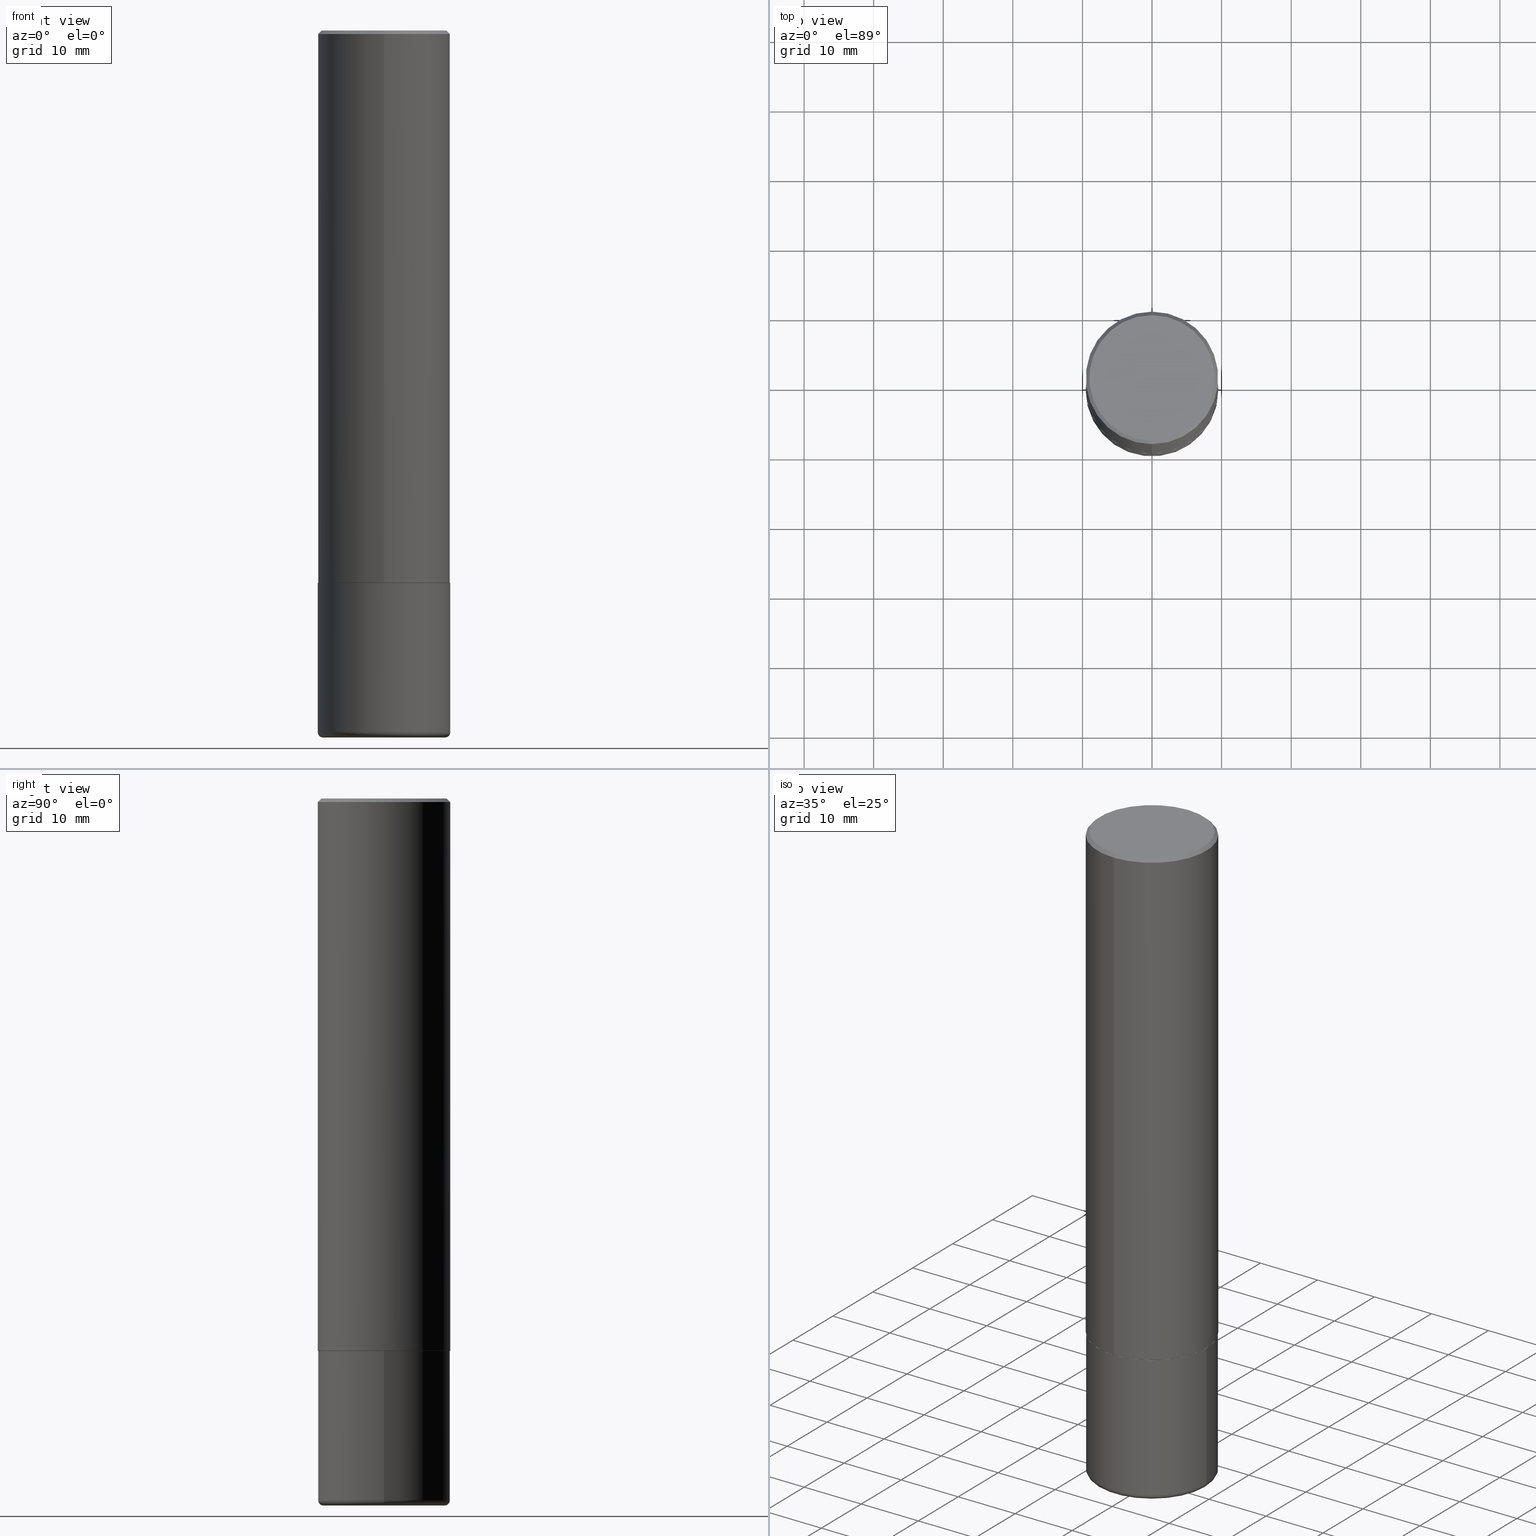
[diagram: canonical four-view strip — front | top / right | iso, engineering-drawing reading convention]
A machine part, canonical four-view strip (front | top / right | iso — engineering-drawing reading convention). The complete STEP part file that produces these views, byte-faithful:
ISO-10303-21;
HEADER;
FILE_DESCRIPTION (( 'STEP AP203' ),
    '1' );
FILE_NAME ('37089.STEP',
    '2024-03-01T19:56:01',
    ( '' ),
    ( '' ),
    'SwSTEP 2.0',
    'SolidWorks 2023',
    '' );
FILE_SCHEMA (( 'CONFIG_CONTROL_DESIGN' ));
ENDSEC;

DATA;
#1 = AXIS2_PLACEMENT_3D ( 'NONE', #22, #353, #398 ) ;
#2 = CARTESIAN_POINT ( 'NONE',  ( 2.660982545421652501E-15, 0.3739999999999891189, -3.125000000000001332 ) ) ;
#3 = CC_DESIGN_DATE_AND_TIME_ASSIGNMENT ( #294, #413, ( #352 ) ) ;
#4 = DIRECTION ( 'NONE',  ( 2.445996322747269804E-29, -3.490725905101792415E-15, -1.000000000000000000 ) ) ;
#5 = VERTEX_POINT ( 'NONE', #239 ) ;
#6 = AXIS2_PLACEMENT_3D ( 'NONE', #274, #178, #377 ) ;
#7 = AXIS2_PLACEMENT_3D ( 'NONE', #183, #213, #215 ) ;
#8 = ORIENTED_EDGE ( 'NONE', *, *, #225, .F. ) ;
#9 = ORIENTED_EDGE ( 'NONE', *, *, #396, .T. ) ;
#10 = EDGE_CURVE ( 'NONE', #43, #173, #357, .T. ) ;
#11 = DIRECTION ( 'NONE',  ( -4.851104656540953231E-15, -0.7071067811865484609, -0.7071067811865465735 ) ) ;
#12 = DIRECTION ( 'NONE',  ( 1.000000000000000000, -6.982962677686267499E-15, 0.000000000000000000 ) ) ;
#13 = PERSON_AND_ORGANIZATION ( #23, #229 ) ;
#14 = EDGE_LOOP ( 'NONE', ( #65, #73, #303, #338 ) ) ;
#15 = ORIENTED_EDGE ( 'NONE', *, *, #164, .T. ) ;
#16 = AXIS2_PLACEMENT_3D ( 'NONE', #34, #71, #212 ) ;
#17 = LINE ( 'NONE', #78, #412 ) ;
#18 = PERSON_AND_ORGANIZATION ( #23, #229 ) ;
#19 = DIRECTION ( 'NONE',  ( -6.982962677686265922E-15, -1.000000000000000000, 3.494488891895535640E-15 ) ) ;
#20 = EDGE_CURVE ( 'NONE', #234, #5, #125, .T. ) ;
#21 = DIRECTION ( 'NONE',  ( -2.445996322747269804E-29, 3.490725905101792415E-15, 1.000000000000000000 ) ) ;
#22 = CARTESIAN_POINT ( 'NONE',  ( 0.000000000000000000, 0.000000000000000000, 0.000000000000000000 ) ) ;
#23 = PERSON ( 'UNSPECIFIED', 'UNSPECIFIED', 'UNSPECIFIED', ('UNSPECIFIED'), ('UNSPECIFIED'), ('UNSPECIFIED') ) ;
#24 = TOROIDAL_SURFACE ( 'NONE', #194, 0.3450000000000000289, 0.02999999999999998848 ) ;
#25 = DIRECTION ( 'NONE',  ( 2.438088387897960049E-29, -3.491481338843145188E-15, -1.000000000000000000 ) ) ;
#26 = DIRECTION ( 'NONE',  ( 1.000000000000000000, 0.000000000000000000, 0.000000000000000000 ) ) ;
#27 = PERSON_AND_ORGANIZATION_ROLE ( 'design_owner' ) ;
#28 = CONICAL_SURFACE ( 'NONE', #403, 0.3750000000000001110, 0.7853981633974461696 ) ;
#29 = EDGE_CURVE ( 'NONE', #237, #364, #216, .T. ) ;
#30 = PERSON_AND_ORGANIZATION ( #23, #229 ) ;
#31 = APPROVAL ( #405, 'UNSPECIFIED' ) ;
#32 = PLANE ( 'NONE',  #202 ) ;
#33 = CC_DESIGN_PERSON_AND_ORGANIZATION_ASSIGNMENT ( #13, #246, ( #92 ) ) ;
#34 = CARTESIAN_POINT ( 'NONE',  ( 9.781875224740546387E-29, -1.396592535537258233E-14, -4.000000000000000000 ) ) ;
#35 = CYLINDRICAL_SURFACE ( 'NONE', #197, 0.3750000000000002220 ) ;
#36 = ORIENTED_EDGE ( 'NONE', *, *, #126, .F. ) ;
#37 = LOCAL_TIME ( 14, 56, 1.000000000000000000, #409 ) ;
#38 = CARTESIAN_POINT ( 'NONE',  ( 9.708511160554992872E-29, -1.386118091520728738E-14, -3.970000000000000195 ) ) ;
#39 = ADVANCED_FACE ( 'NONE', ( #374 ), #28, .T. ) ;
#40 = ORIENTED_EDGE ( 'NONE', *, *, #20, .F. ) ;
#41 = DIRECTION ( 'NONE',  ( -2.445468806185136597E-29, 3.491481338843145583E-15, 1.000000000000000000 ) ) ;
#42 = CYLINDRICAL_SURFACE ( 'NONE', #332, 0.3750000000000000555 ) ;
#43 = VERTEX_POINT ( 'NONE', #54 ) ;
#44 = CARTESIAN_POINT ( 'NONE',  ( -2.618611004132276258E-15, -0.3750000000000113243, -3.123999999999999222 ) ) ;
#45 = CARTESIAN_POINT ( 'NONE',  ( -4.796192645073071495E-45, 6.844733884640892963E-31, 1.960833955664386180E-16 ) ) ;
#46 = EDGE_LOOP ( 'NONE', ( #221, #204, #276, #306 ) ) ;
#47 = CARTESIAN_POINT ( 'NONE',  ( 0.3750000000000000555, -2.618611004132350016E-15, 1.828566290923476203E-29 ) ) ;
#48 = AXIS2_PLACEMENT_3D ( 'NONE', #106, #25, #381 ) ;
#49 = CARTESIAN_POINT ( 'NONE',  ( -0.3750000000000000555, -9.721494790445683584E-15, -3.125000000000000000 ) ) ;
#50 = CARTESIAN_POINT ( 'NONE',  ( -2.618611004132351594E-15, -0.3750000000000002220, 1.309022214413172994E-15 ) ) ;
#51 = DIRECTION ( 'NONE',  ( 1.000000000000000000, -6.982962677686266711E-15, 0.000000000000000000 ) ) ;
#52 = FACE_OUTER_BOUND ( 'NONE', #139, .T. ) ;
#53 = EDGE_CURVE ( 'NONE', #5, #234, #185, .T. ) ;
#54 = CARTESIAN_POINT ( 'NONE',  ( -2.504081769186608216E-15, -0.3549999999999999267, 1.435291091877574841E-15 ) ) ;
#55 =( NAMED_UNIT ( * ) PLANE_ANGLE_UNIT ( ) SI_UNIT ( $, .RADIAN. ) );
#56 = DIRECTION ( 'NONE',  ( 7.105427357601001859E-15, 1.000000000000000000, -3.491481338843145583E-15 ) ) ;
#57 = APPLICATION_PROTOCOL_DEFINITION ( 'international standard', 'config_control_design', 1994, #279 ) ;
#58 = ORIENTED_EDGE ( 'NONE', *, *, #232, .F. ) ;
#59 = CC_DESIGN_PERSON_AND_ORGANIZATION_ASSIGNMENT ( #30, #107, ( #92 ) ) ;
#60 = CALENDAR_DATE ( 2024, 1, 3 ) ;
#61 = CC_DESIGN_APPROVAL ( #316, ( #92 ) ) ;
#62 = AXIS2_PLACEMENT_3D ( 'NONE', #407, #255, #260 ) ;
#63 = CARTESIAN_POINT ( 'NONE',  ( -0.3750000000000000555, 2.664535259100376091E-15, -1.844600658845589598E-29 ) ) ;
#64 = CARTESIAN_POINT ( 'NONE',  ( -2.572686749164324336E-15, -0.3750000000000001665, -0.01999999999999877570 ) ) ;
#65 = ORIENTED_EDGE ( 'NONE', *, *, #232, .T. ) ;
#66 = ORIENTED_EDGE ( 'NONE', *, *, #389, .F. ) ;
#67 = EDGE_CURVE ( 'NONE', #72, #210, #157, .T. ) ;
#68 = DIRECTION ( 'NONE',  ( -6.982962677686265922E-15, -1.000000000000000000, 3.490725905101791232E-15 ) ) ;
#69 = EDGE_LOOP ( 'NONE', ( #307, #337, #74, #284 ) ) ;
#70 = AXIS2_PLACEMENT_3D ( 'NONE', #45, #305, #68 ) ;
#71 = DIRECTION ( 'NONE',  ( 2.438088387897960049E-29, -3.491481338843145188E-15, -1.000000000000000000 ) ) ;
#72 = VERTEX_POINT ( 'NONE', #314 ) ;
#73 = ORIENTED_EDGE ( 'NONE', *, *, #331, .T. ) ;
#74 = ORIENTED_EDGE ( 'NONE', *, *, #225, .T. ) ;
#75 = DIRECTION ( 'NONE',  ( -6.982962677686265922E-15, -1.000000000000000000, 2.913971193241877611E-15 ) ) ;
#76 = CARTESIAN_POINT ( 'NONE',  ( -2.611628041454587088E-15, -0.3740000000000109348, -3.124999999999999112 ) ) ;
#77 = ORIENTED_EDGE ( 'NONE', *, *, #248, .F. ) ;
#78 = CARTESIAN_POINT ( 'NONE',  ( 2.664535259100376880E-15, 0.3750000000000002220, -1.309022214413172994E-15 ) ) ;
#79 = CIRCLE ( 'NONE', #327, 0.3750000000000000555 ) ;
#80 = DIRECTION ( 'NONE',  ( -6.982962677686265922E-15, -1.000000000000000000, 3.494488891895535640E-15 ) ) ;
#81 = CARTESIAN_POINT ( 'NONE',  ( 4.891992645494561398E-31, -6.981451810203614264E-17, -0.02000000000000008715 ) ) ;
#82 = CYLINDRICAL_SURFACE ( 'NONE', #1, 0.3750000000000000555 ) ;
#83 = DIRECTION ( 'NONE',  ( -2.445468806185136597E-29, 3.491481338843145583E-15, 1.000000000000000000 ) ) ;
#84 = COORDINATED_UNIVERSAL_TIME_OFFSET ( 5, 0, .BEHIND. ) ;
#85 = EDGE_CURVE ( 'NONE', #240, #340, #391, .T. ) ;
#86 = DIRECTION ( 'NONE',  ( 0.000000000000000000, 0.000000000000000000, 1.000000000000000000 ) ) ;
#87 = DATE_AND_TIME ( #380, #37 ) ;
#88 = DIRECTION ( 'NONE',  ( 2.445996322747269804E-29, -3.490725905101792415E-15, -1.000000000000000000 ) ) ;
#89 = DIRECTION ( 'NONE',  ( -2.445996322747270084E-29, 3.490725905101792021E-15, 1.000000000000000000 ) ) ;
#90 = FACE_OUTER_BOUND ( 'NONE', #392, .T. ) ;
#91 = AXIS2_PLACEMENT_3D ( 'NONE', #209, #347, #351 ) ;
#92 = PRODUCT_DEFINITION_FORMATION_WITH_SPECIFIED_SOURCE ( 'ANY', '', #406, .NOT_KNOWN. ) ;
#93 = DIRECTION ( 'NONE',  ( -6.982962677686266711E-15, -1.000000000000000000, 2.921762560068730595E-15 ) ) ;
#94 = EDGE_CURVE ( 'NONE', #237, #163, #382, .T. ) ;
#95 = ORIENTED_EDGE ( 'NONE', *, *, #270, .T. ) ;
#96 = CARTESIAN_POINT ( 'NONE',  ( 7.641292512262471991E-29, -1.090502772753799986E-14, -3.124000000000000554 ) ) ;
#97 = CC_DESIGN_APPROVAL ( #188, ( #352 ) ) ;
#98 = DIMENSIONAL_EXPONENTS ( 1.000000000000000000, 0.000000000000000000, 0.000000000000000000, 0.000000000000000000, 0.000000000000000000, 0.000000000000000000, 0.000000000000000000 ) ;
#99 = ORIENTED_EDGE ( 'NONE', *, *, #148, .F. ) ;
#100 = EDGE_CURVE ( 'NONE', #163, #237, #114, .T. ) ;
#101 = DIRECTION ( 'NONE',  ( -2.445996322747269804E-29, 3.490725905101792415E-15, 1.000000000000000000 ) ) ;
#102 = EDGE_LOOP ( 'NONE', ( #400, #366, #108, #395 ) ) ;
#103 = ORIENTED_EDGE ( 'NONE', *, *, #148, .T. ) ;
#104 = CC_DESIGN_PERSON_AND_ORGANIZATION_ASSIGNMENT ( #124, #253, ( #352 ) ) ;
#105 = APPLICATION_CONTEXT ( 'configuration controlled 3d designs of mechanical parts and assemblies' ) ;
#106 = CARTESIAN_POINT ( 'NONE',  ( 7.642090019328551865E-29, -1.091087918388483118E-14, -3.125000000000000000 ) ) ;
#107 = PERSON_AND_ORGANIZATION_ROLE ( 'creator' ) ;
#108 = ORIENTED_EDGE ( 'NONE', *, *, #29, .T. ) ;
#109 = EDGE_LOOP ( 'NONE', ( #66, #168, #308, #299 ) ) ;
#110 = PLANE ( 'NONE',  #166 ) ;
#111 = CARTESIAN_POINT ( 'NONE',  ( 7.643738508585217927E-29, -1.090851845344310125E-14, -3.125000000000000000 ) ) ;
#112 = DIRECTION ( 'NONE',  ( -2.445996322747269804E-29, 3.490725905101792415E-15, 1.000000000000000000 ) ) ;
#113 = CALENDAR_DATE ( 2024, 1, 3 ) ;
#114 = CIRCLE ( 'NONE', #62, 0.3739999999999999991 ) ;
#115 = AXIS2_PLACEMENT_3D ( 'NONE', #238, #371, #12 ) ;
#116 = CARTESIAN_POINT ( 'NONE',  ( -0.3450000000000000289, -1.140980847683494193E-14, -3.970000000000000195 ) ) ;
#117 = ADVANCED_FACE ( 'NONE', ( #343 ), #297, .T. ) ;
#118 = CARTESIAN_POINT ( 'NONE',  ( 0.000000000000000000, 0.000000000000000000, 0.000000000000000000 ) ) ;
#119 = APPROVAL_ROLE ( '' ) ;
#120 = LINE ( 'NONE', #181, #313 ) ;
#121 = SHAPE_DEFINITION_REPRESENTATION ( #414, #383 ) ;
#122 = DIRECTION ( 'NONE',  ( 6.982962677686265922E-15, 1.000000000000000000, -3.494488891895535640E-15 ) ) ;
#123 = VECTOR ( 'NONE', #280, 39.37007874015748143 ) ;
#124 = PERSON_AND_ORGANIZATION ( #23, #229 ) ;
#125 = CIRCLE ( 'NONE', #235, 0.3750000000000000555 ) ;
#126 = EDGE_CURVE ( 'NONE', #43, #240, #394, .T. ) ;
#127 =( CONVERSION_BASED_UNIT ( 'INCH', #195 ) LENGTH_UNIT ( ) NAMED_UNIT ( #98 ) );
#128 = MANIFOLD_SOLID_BREP ( 'Body-Move/Copy2[2]', #161 ) ;
#129 = FACE_OUTER_BOUND ( 'NONE', #277, .T. ) ;
#130 = ADVANCED_FACE ( 'NONE', ( #201 ), #42, .T. ) ;
#131 = LINE ( 'NONE', #218, #304 ) ;
#132 = CC_DESIGN_SECURITY_CLASSIFICATION ( #198, ( #92 ) ) ;
#133 = ADVANCED_FACE ( 'NONE', ( #325 ), #326, .T. ) ;
#134 = DIRECTION ( 'NONE',  ( -2.445996322747269804E-29, 3.490725905101792415E-15, 1.000000000000000000 ) ) ;
#135 = ORIENTED_EDGE ( 'NONE', *, *, #378, .F. ) ;
#136 = ADVANCED_FACE ( 'NONE', ( #384 ), #32, .F. ) ;
#137 = AXIS2_PLACEMENT_3D ( 'NONE', #258, #330, #418 ) ;
#138 = VECTOR ( 'NONE', #208, 39.37007874015748143 ) ;
#139 = EDGE_LOOP ( 'NONE', ( #140, #365, #262, #8 ) ) ;
#140 = ORIENTED_EDGE ( 'NONE', *, *, #20, .T. ) ;
#141 = LINE ( 'NONE', #50, #138 ) ;
#142 = AXIS2_PLACEMENT_3D ( 'NONE', #96, #101, #230 ) ;
#143 = PERSON_AND_ORGANIZATION_ROLE ( 'classification_officer' ) ;
#144 = AXIS2_PLACEMENT_3D ( 'NONE', #146, #112, #80 ) ;
#145 = DIRECTION ( 'NONE',  ( -2.445996322747270084E-29, 3.490725905101792021E-15, 1.000000000000000000 ) ) ;
#146 = CARTESIAN_POINT ( 'NONE',  ( 4.891992645494561398E-31, -6.981451810203614264E-17, -0.02000000000000008715 ) ) ;
#147 = SECURITY_CLASSIFICATION_LEVEL ( 'unclassified' ) ;
#148 = EDGE_CURVE ( 'NONE', #173, #43, #397, .T. ) ;
#149 = FACE_OUTER_BOUND ( 'NONE', #254, .T. ) ;
#150 = VECTOR ( 'NONE', #11, 39.37007874015748143 ) ;
#151 = DIRECTION ( 'NONE',  ( 1.000000000000000000, -6.982962677686266711E-15, 0.000000000000000000 ) ) ;
#152 = APPROVAL_PERSON_ORGANIZATION ( #18, #31, #119 ) ;
#153 = DIRECTION ( 'NONE',  ( 1.000000000000000000, -6.982962677686266711E-15, 0.000000000000000000 ) ) ;
#154 =( LENGTH_UNIT ( ) NAMED_UNIT ( * ) SI_UNIT ( $, .METRE. ) );
#155 = PERSON_AND_ORGANIZATION ( #23, #229 ) ;
#156 = CC_DESIGN_PERSON_AND_ORGANIZATION_ASSIGNMENT ( #287, #143, ( #198 ) ) ;
#157 = CIRCLE ( 'NONE', #91, 0.3450000000000000289 ) ;
#158 = DIRECTION ( 'NONE',  ( -2.445996322747269804E-29, 3.490725905101792415E-15, 1.000000000000000000 ) ) ;
#159 = PRODUCT_RELATED_PRODUCT_CATEGORY ( 'detail', '', ( #406 ) ) ;
#160 = ADVANCED_FACE ( 'NONE', ( #129 ), #227, .T. ) ;
#161 = CLOSED_SHELL ( 'NONE', ( #160, #171, #117, #39, #133, #257, #136, #295 ) ) ;
#162 = AXIS2_PLACEMENT_3D ( 'NONE', #261, #158, #296 ) ;
#163 = VERTEX_POINT ( 'NONE', #2 ) ;
#164 = EDGE_CURVE ( 'NONE', #200, #370, #79, .T. ) ;
#165 = EDGE_LOOP ( 'NONE', ( #335, #344, #95, #135 ) ) ;
#166 = AXIS2_PLACEMENT_3D ( 'NONE', #408, #172, #319 ) ;
#167 = DIRECTION ( 'NONE',  ( -2.445468806185136597E-29, 3.491481338843145583E-15, 1.000000000000000000 ) ) ;
#168 = ORIENTED_EDGE ( 'NONE', *, *, #363, .T. ) ;
#169 = DIRECTION ( 'NONE',  ( -6.982962677686266711E-15, -1.000000000000000000, 3.490725905101792415E-15 ) ) ;
#170 = ORIENTED_EDGE ( 'NONE', *, *, #67, .T. ) ;
#171 = ADVANCED_FACE ( 'NONE', ( #367 ), #35, .T. ) ;
#172 = DIRECTION ( 'NONE',  ( 2.445996322747270084E-29, -3.490725905101792021E-15, -1.000000000000000000 ) ) ;
#173 = VERTEX_POINT ( 'NONE', #263 ) ;
#174 = CARTESIAN_POINT ( 'NONE',  ( -2.572686749164324336E-15, -0.3750000000000001665, -0.01999999999999877570 ) ) ;
#175 =( GEOMETRIC_REPRESENTATION_CONTEXT ( 3 ) GLOBAL_UNCERTAINTY_ASSIGNED_CONTEXT ( ( #251 ) ) GLOBAL_UNIT_ASSIGNED_CONTEXT ( ( #127, #55, #293 ) ) REPRESENTATION_CONTEXT ( 'NONE', 'WORKASPACE' ) );
#176 = CIRCLE ( 'NONE', #275, 0.3750000000000000555 ) ;
#177 = DIRECTION ( 'NONE',  ( -4.937700262165896205E-15, -0.7071067811867381980, 0.7071067811863568364 ) ) ;
#178 = DIRECTION ( 'NONE',  ( -6.982962677686266711E-15, -1.000000000000000000, 3.491481338843145583E-15 ) ) ;
#179 = EDGE_CURVE ( 'NONE', #399, #364, #375, .T. ) ;
#180 = CC_DESIGN_DATE_AND_TIME_ASSIGNMENT ( #87, #184, ( #198 ) ) ;
#181 = CARTESIAN_POINT ( 'NONE',  ( 2.657429831742851208E-15, 0.3739999999999891189, -3.125000000000001332 ) ) ;
#182 = DIRECTION ( 'NONE',  ( -2.445996322747269804E-29, 3.490725905101792415E-15, 1.000000000000000000 ) ) ;
#183 = CARTESIAN_POINT ( 'NONE',  ( 7.643738508585217927E-29, -1.090851845344310125E-14, -3.125000000000000000 ) ) ;
#184 = DATE_TIME_ROLE ( 'classification_date' ) ;
#185 = CIRCLE ( 'NONE', #219, 0.3750000000000000555 ) ;
#186 = CIRCLE ( 'NONE', #361, 0.02999999999999995379 ) ;
#187 = APPROVAL_STATUS ( 'not_yet_approved' ) ;
#188 = APPROVAL ( #187, 'UNSPECIFIED' ) ;
#189 = CARTESIAN_POINT ( 'NONE',  ( 9.708511160554992872E-29, -1.386118091520728738E-14, -3.970000000000000195 ) ) ;
#190 = APPROVAL_ROLE ( '' ) ;
#191 = DIRECTION ( 'NONE',  ( -1.000000000000000000, 7.105427357601001859E-15, 0.000000000000000000 ) ) ;
#192 = CIRCLE ( 'NONE', #6, 0.02999999999999995379 ) ;
#193 = APPROVAL_DATE_TIME ( #329, #316 ) ;
#194 = AXIS2_PLACEMENT_3D ( 'NONE', #404, #245, #379 ) ;
#195 = LENGTH_MEASURE_WITH_UNIT ( LENGTH_MEASURE( 0.02539999999999999897 ), #154 );
#196 = EDGE_CURVE ( 'NONE', #5, #370, #362, .T. ) ;
#197 = AXIS2_PLACEMENT_3D ( 'NONE', #298, #134, #169 ) ;
#198 = SECURITY_CLASSIFICATION ( '', '', #147 ) ;
#199 = EDGE_LOOP ( 'NONE', ( #36, #99, #9, #206 ) ) ;
#200 = VERTEX_POINT ( 'NONE', #268 ) ;
#201 = FACE_OUTER_BOUND ( 'NONE', #69, .T. ) ;
#202 = AXIS2_PLACEMENT_3D ( 'NONE', #416, #89, #226 ) ;
#203 = LOCAL_TIME ( 14, 56, 1.000000000000000000, #410 ) ;
#204 = ORIENTED_EDGE ( 'NONE', *, *, #126, .T. ) ;
#205 = DIRECTION ( 'NONE',  ( 5.024295867789434219E-15, 0.7071067811867430830, 0.7071067811863519514 ) ) ;
#206 = ORIENTED_EDGE ( 'NONE', *, *, #378, .T. ) ;
#207 = ORIENTED_EDGE ( 'NONE', *, *, #302, .T. ) ;
#208 = DIRECTION ( 'NONE',  ( -2.445996322747270084E-29, 3.490725905101792021E-15, 1.000000000000000000 ) ) ;
#209 = CARTESIAN_POINT ( 'NONE',  ( 9.781875224740546387E-29, -1.396592535537258233E-14, -4.000000000000000000 ) ) ;
#210 = VERTEX_POINT ( 'NONE', #247 ) ;
#211 = CARTESIAN_POINT ( 'NONE',  ( -2.611628041454587088E-15, -0.3740000000000109348, -3.124999999999999112 ) ) ;
#212 = DIRECTION ( 'NONE',  ( -1.000000000000000000, 6.982962677686265922E-15, -4.876176775795935793E-29 ) ) ;
#213 = DIRECTION ( 'NONE',  ( -2.445996322747269804E-29, 3.490725905101792415E-15, 1.000000000000000000 ) ) ;
#214 = DIRECTION ( 'NONE',  ( -2.445996322747269804E-29, 3.490725905101792415E-15, 1.000000000000000000 ) ) ;
#215 = DIRECTION ( 'NONE',  ( -6.982962677686266711E-15, -1.000000000000000000, 2.921762560068730595E-15 ) ) ;
#216 = LINE ( 'NONE', #76, #265 ) ;
#217 = APPLICATION_PROTOCOL_DEFINITION ( 'international standard', 'config_control_design', 1994, #105 ) ;
#218 = CARTESIAN_POINT ( 'NONE',  ( 2.618611004132351200E-15, 0.3750000000000000555, -0.02000000000000139513 ) ) ;
#219 = AXIS2_PLACEMENT_3D ( 'NONE', #189, #250, #51 ) ;
#220 = APPROVAL_PERSON_ORGANIZATION ( #356, #188, #190 ) ;
#221 = ORIENTED_EDGE ( 'NONE', *, *, #10, .F. ) ;
#222 = DIRECTION ( 'NONE',  ( -2.445996322747269804E-29, 3.490725905101792415E-15, 1.000000000000000000 ) ) ;
#223 = CARTESIAN_POINT ( 'NONE',  ( 0.000000000000000000, 0.000000000000000000, 0.000000000000000000 ) ) ;
#224 = APPROVAL_ROLE ( '' ) ;
#225 = EDGE_CURVE ( 'NONE', #234, #200, #346, .T. ) ;
#226 = DIRECTION ( 'NONE',  ( -6.982962677686265922E-15, -1.000000000000000000, 3.490725905101792021E-15 ) ) ;
#227 = CONICAL_SURFACE ( 'NONE', #273, 0.3739999999999999991, 0.7853981633977213939 ) ;
#228 = LOCAL_TIME ( 14, 56, 1.000000000000000000, #359 ) ;
#229 = ORGANIZATION ( 'UNSPECIFIED', 'UNSPECIFIED', '' ) ;
#230 = DIRECTION ( 'NONE',  ( -6.982962677686265922E-15, -1.000000000000000000, 2.913971193241877611E-15 ) ) ;
#231 = DIRECTION ( 'NONE',  ( 6.982962677686265922E-15, 1.000000000000000000, -3.494488891895535640E-15 ) ) ;
#232 = EDGE_CURVE ( 'NONE', #364, #399, #411, .T. ) ;
#233 = ORIENTED_EDGE ( 'NONE', *, *, #67, .F. ) ;
#234 = VERTEX_POINT ( 'NONE', #278 ) ;
#235 = AXIS2_PLACEMENT_3D ( 'NONE', #38, #167, #151 ) ;
#236 = DIRECTION ( 'NONE',  ( 1.000000000000000000, -6.982962677686266711E-15, 0.000000000000000000 ) ) ;
#237 = VERTEX_POINT ( 'NONE', #211 ) ;
#238 = CARTESIAN_POINT ( 'NONE',  ( 9.781875224740546387E-29, -1.396592535537258233E-14, -4.000000000000000000 ) ) ;
#239 = CARTESIAN_POINT ( 'NONE',  ( -0.3749999999999999445, -1.119664565610691011E-14, -3.970000000000000195 ) ) ;
#240 = VERTEX_POINT ( 'NONE', #174 ) ;
#241 = DIRECTION ( 'NONE',  ( -2.445468806185136597E-29, 3.491481338843145583E-15, 1.000000000000000000 ) ) ;
#242 = CARTESIAN_POINT ( 'NONE',  ( 9.708511160554992872E-29, -1.386118091520728738E-14, -3.970000000000000195 ) ) ;
#243 = AXIS2_PLACEMENT_3D ( 'NONE', #317, #21, #75 ) ;
#244 = AXIS2_PLACEMENT_3D ( 'NONE', #223, #86, #26 ) ;
#245 = DIRECTION ( 'NONE',  ( -2.445468806185136597E-29, 3.491481338843145583E-15, 1.000000000000000000 ) ) ;
#246 = PERSON_AND_ORGANIZATION_ROLE ( 'design_supplier' ) ;
#247 = CARTESIAN_POINT ( 'NONE',  ( -0.3450000000000000289, -1.135559928655357428E-14, -4.000000000000000000 ) ) ;
#248 = EDGE_CURVE ( 'NONE', #72, #234, #192, .T. ) ;
#249 = PLANE ( 'NONE',  #16 ) ;
#250 = DIRECTION ( 'NONE',  ( -2.445468806185136597E-29, 3.491481338843145583E-15, 1.000000000000000000 ) ) ;
#251 = UNCERTAINTY_MEASURE_WITH_UNIT (LENGTH_MEASURE( 1.000000000000000082E-05 ), #127, 'distance_accuracy_value', 'NONE');
#252 = CC_DESIGN_APPROVAL ( #31, ( #198 ) ) ;
#253 = PERSON_AND_ORGANIZATION_ROLE ( 'creator' ) ;
#254 = EDGE_LOOP ( 'NONE', ( #170, #272, #40, #77 ) ) ;
#255 = DIRECTION ( 'NONE',  ( -2.445996322747269804E-29, 3.490725905101792415E-15, 1.000000000000000000 ) ) ;
#256 = PERSON_AND_ORGANIZATION ( #23, #229 ) ;
#257 = ADVANCED_FACE ( 'NONE', ( #355 ), #328, .T. ) ;
#258 = CARTESIAN_POINT ( 'NONE',  ( -4.796192645073071495E-45, 6.844733884640892963E-31, 1.960833955664386180E-16 ) ) ;
#259 = MECHANICAL_CONTEXT ( 'NONE', #105, 'mechanical' ) ;
#260 = DIRECTION ( 'NONE',  ( -6.982962677686266711E-15, -1.000000000000000000, 2.921762560068730595E-15 ) ) ;
#261 = CARTESIAN_POINT ( 'NONE',  ( 0.000000000000000000, 0.000000000000000000, 0.000000000000000000 ) ) ;
#262 = ORIENTED_EDGE ( 'NONE', *, *, #164, .F. ) ;
#263 = CARTESIAN_POINT ( 'NONE',  ( 2.548781377355487113E-15, 0.3549999999999999267, -1.043124300744697210E-15 ) ) ;
#264 = CARTESIAN_POINT ( 'NONE',  ( 4.891992645494561398E-31, -6.981451810203614264E-17, -0.02000000000000008715 ) ) ;
#265 = VECTOR ( 'NONE', #177, 39.37007874015748143 ) ;
#266 = ORIENTED_EDGE ( 'NONE', *, *, #100, .F. ) ;
#267 = LOCAL_TIME ( 14, 56, 1.000000000000000000, #84 ) ;
#268 = CARTESIAN_POINT ( 'NONE',  ( 0.3750000000000000555, -1.352949018801718119E-14, -3.125000000000000000 ) ) ;
#269 = EDGE_LOOP ( 'NONE', ( #368, #266 ) ) ;
#270 = EDGE_CURVE ( 'NONE', #364, #240, #141, .T. ) ;
#271 = EDGE_LOOP ( 'NONE', ( #103, #372 ) ) ;
#272 = ORIENTED_EDGE ( 'NONE', *, *, #389, .T. ) ;
#273 = AXIS2_PLACEMENT_3D ( 'NONE', #390, #222, #93 ) ;
#274 = CARTESIAN_POINT ( 'NONE',  ( 0.3450000000000000289, -1.627030303900905066E-14, -3.970000000000000195 ) ) ;
#275 = AXIS2_PLACEMENT_3D ( 'NONE', #373, #401, #153 ) ;
#276 = ORIENTED_EDGE ( 'NONE', *, *, #85, .T. ) ;
#277 = EDGE_LOOP ( 'NONE', ( #345, #207, #58, #301 ) ) ;
#278 = CARTESIAN_POINT ( 'NONE',  ( 0.3749999999999999445, -1.647979191933963740E-14, -3.970000000000000195 ) ) ;
#279 = APPLICATION_CONTEXT ( 'configuration controlled 3d designs of mechanical parts and assemblies' ) ;
#280 = DIRECTION ( 'NONE',  ( -2.445468806185136877E-29, 3.491481338843145188E-15, 1.000000000000000000 ) ) ;
#281 = DATE_AND_TIME ( #113, #267 ) ;
#282 = CARTESIAN_POINT ( 'NONE',  ( 4.891992645494561398E-31, -6.981451810203614264E-17, -0.02000000000000008715 ) ) ;
#283 = DESIGN_CONTEXT ( 'detailed design', #279, 'design' ) ;
#284 = ORIENTED_EDGE ( 'NONE', *, *, #354, .F. ) ;
#285 = AXIS2_PLACEMENT_3D ( 'NONE', #264, #4, #231 ) ;
#286 = ADVANCED_FACE ( 'NONE', ( #52 ), #82, .T. ) ;
#287 = PERSON_AND_ORGANIZATION ( #23, #229 ) ;
#288 = DIRECTION ( 'NONE',  ( -6.982962677686266711E-15, -1.000000000000000000, 2.921762560068730595E-15 ) ) ;
#289 = FACE_OUTER_BOUND ( 'NONE', #271, .T. ) ;
#290 = DIRECTION ( 'NONE',  ( 1.000000000000000000, -6.982962677686265922E-15, 4.876176775795935793E-29 ) ) ;
#291 = APPROVAL_DATE_TIME ( #281, #31 ) ;
#292 = APPROVAL_DATE_TIME ( #322, #188 ) ;
#293 =( NAMED_UNIT ( * ) SI_UNIT ( $, .STERADIAN. ) SOLID_ANGLE_UNIT ( ) );
#294 = DATE_AND_TIME ( #358, #339 ) ;
#295 = ADVANCED_FACE ( 'NONE', ( #289 ), #110, .F. ) ;
#296 = DIRECTION ( 'NONE',  ( -6.982962677686266711E-15, -1.000000000000000000, 3.490725905101792415E-15 ) ) ;
#297 = CONICAL_SURFACE ( 'NONE', #285, 0.3750000000000001110, 0.7853981633974461696 ) ;
#298 = CARTESIAN_POINT ( 'NONE',  ( 0.000000000000000000, 0.000000000000000000, 0.000000000000000000 ) ) ;
#299 = ORIENTED_EDGE ( 'NONE', *, *, #53, .F. ) ;
#300 = DIRECTION ( 'NONE',  ( -2.445468806185136877E-29, 3.491481338843145188E-15, 1.000000000000000000 ) ) ;
#301 = ORIENTED_EDGE ( 'NONE', *, *, #29, .F. ) ;
#302 = EDGE_CURVE ( 'NONE', #163, #399, #120, .T. ) ;
#303 = ORIENTED_EDGE ( 'NONE', *, *, #85, .F. ) ;
#304 = VECTOR ( 'NONE', #324, 39.37007874015748143 ) ;
#305 = DIRECTION ( 'NONE',  ( -2.445996322747269804E-29, 3.490725905101792415E-15, 1.000000000000000000 ) ) ;
#306 = ORIENTED_EDGE ( 'NONE', *, *, #396, .F. ) ;
#307 = ORIENTED_EDGE ( 'NONE', *, *, #196, .F. ) ;
#308 = ORIENTED_EDGE ( 'NONE', *, *, #248, .T. ) ;
#309 = FACE_OUTER_BOUND ( 'NONE', #109, .T. ) ;
#310 = EDGE_LOOP ( 'NONE', ( #15, #336 ) ) ;
#311 = VECTOR ( 'NONE', #300, 39.37007874015748143 ) ;
#312 = PLANE ( 'NONE',  #48 ) ;
#313 = VECTOR ( 'NONE', #205, 39.37007874015748143 ) ;
#314 = CARTESIAN_POINT ( 'NONE',  ( 0.3450000000000000289, -1.637504747917434403E-14, -4.000000000000000000 ) ) ;
#315 = DIRECTION ( 'NONE',  ( 1.000000000000000000, -6.982962677686263555E-15, 4.883557194083111219E-29 ) ) ;
#316 = APPROVAL ( #387, 'UNSPECIFIED' ) ;
#317 = CARTESIAN_POINT ( 'NONE',  ( 7.641292512262471991E-29, -1.090502772753799986E-14, -3.124000000000000554 ) ) ;
#318 = ADVANCED_FACE ( 'NONE', ( #350 ), #312, .F. ) ;
#319 = DIRECTION ( 'NONE',  ( 6.982962677686265922E-15, 1.000000000000000000, -3.490725905101792021E-15 ) ) ;
#320 = AXIS2_PLACEMENT_3D ( 'NONE', #111, #182, #288 ) ;
#321 = AXIS2_PLACEMENT_3D ( 'NONE', #242, #241, #315 ) ;
#322 = DATE_AND_TIME ( #323, #203 ) ;
#323 = CALENDAR_DATE ( 2024, 1, 3 ) ;
#324 = DIRECTION ( 'NONE',  ( 4.937700262164536998E-15, 0.7071067811865435759, -0.7071067811865514585 ) ) ;
#325 = FACE_OUTER_BOUND ( 'NONE', #165, .T. ) ;
#326 = CYLINDRICAL_SURFACE ( 'NONE', #162, 0.3750000000000002220 ) ;
#327 = AXIS2_PLACEMENT_3D ( 'NONE', #334, #41, #236 ) ;
#328 = CONICAL_SURFACE ( 'NONE', #7, 0.3739999999999999991, 0.7853981633977213939 ) ;
#329 = DATE_AND_TIME ( #60, #228 ) ;
#330 = DIRECTION ( 'NONE',  ( -2.445996322747269804E-29, 3.490725905101792415E-15, 1.000000000000000000 ) ) ;
#331 = EDGE_CURVE ( 'NONE', #399, #340, #17, .T. ) ;
#332 = AXIS2_PLACEMENT_3D ( 'NONE', #118, #83, #290 ) ;
#333 = CIRCLE ( 'NONE', #115, 0.3450000000000000289 ) ;
#334 = CARTESIAN_POINT ( 'NONE',  ( 7.642090019328551865E-29, -1.091087918388483118E-14, -3.125000000000000000 ) ) ;
#335 = ORIENTED_EDGE ( 'NONE', *, *, #331, .F. ) ;
#336 = ORIENTED_EDGE ( 'NONE', *, *, #354, .T. ) ;
#337 = ORIENTED_EDGE ( 'NONE', *, *, #53, .T. ) ;
#338 = ORIENTED_EDGE ( 'NONE', *, *, #270, .F. ) ;
#339 = LOCAL_TIME ( 14, 56, 1.000000000000000000, #386 ) ;
#340 = VERTEX_POINT ( 'NONE', #341 ) ;
#341 = CARTESIAN_POINT ( 'NONE',  ( 2.618611004132351200E-15, 0.3750000000000000555, -0.02000000000000139513 ) ) ;
#342 = CC_DESIGN_PERSON_AND_ORGANIZATION_ASSIGNMENT ( #155, #27, ( #406 ) ) ;
#343 = FACE_OUTER_BOUND ( 'NONE', #46, .T. ) ;
#344 = ORIENTED_EDGE ( 'NONE', *, *, #179, .T. ) ;
#345 = ORIENTED_EDGE ( 'NONE', *, *, #94, .T. ) ;
#346 = LINE ( 'NONE', #47, #123 ) ;
#347 = DIRECTION ( 'NONE',  ( -2.445468806185136597E-29, 3.491481338843145583E-15, 1.000000000000000000 ) ) ;
#348 = CLOSED_SHELL ( 'NONE', ( #286, #388, #318, #130, #369, #417 ) ) ;
#349 = APPROVAL_PERSON_ORGANIZATION ( #256, #316, #224 ) ;
#350 = FACE_OUTER_BOUND ( 'NONE', #310, .T. ) ;
#351 = DIRECTION ( 'NONE',  ( 1.000000000000000000, -6.982962677686267499E-15, 0.000000000000000000 ) ) ;
#352 = PRODUCT_DEFINITION ( 'UNKNOWN', '', #92, #283 ) ;
#353 = DIRECTION ( 'NONE',  ( -2.445468806185136597E-29, 3.491481338843145583E-15, 1.000000000000000000 ) ) ;
#354 = EDGE_CURVE ( 'NONE', #370, #200, #176, .T. ) ;
#355 = FACE_OUTER_BOUND ( 'NONE', #102, .T. ) ;
#356 = PERSON_AND_ORGANIZATION ( #23, #229 ) ;
#357 = CIRCLE ( 'NONE', #70, 0.3549999999999999267 ) ;
#358 = CALENDAR_DATE ( 2024, 1, 3 ) ;
#359 = COORDINATED_UNIVERSAL_TIME_OFFSET ( 5, 0, .BEHIND. ) ;
#360 = AXIS2_PLACEMENT_3D ( 'NONE', #81, #214, #19 ) ;
#361 = AXIS2_PLACEMENT_3D ( 'NONE', #116, #56, #191 ) ;
#362 = LINE ( 'NONE', #63, #311 ) ;
#363 = EDGE_CURVE ( 'NONE', #210, #72, #333, .T. ) ;
#364 = VERTEX_POINT ( 'NONE', #44 ) ;
#365 = ORIENTED_EDGE ( 'NONE', *, *, #196, .T. ) ;
#366 = ORIENTED_EDGE ( 'NONE', *, *, #100, .T. ) ;
#367 = FACE_OUTER_BOUND ( 'NONE', #14, .T. ) ;
#368 = ORIENTED_EDGE ( 'NONE', *, *, #94, .F. ) ;
#369 = ADVANCED_FACE ( 'NONE', ( #309 ), #385, .T. ) ;
#370 = VERTEX_POINT ( 'NONE', #49 ) ;
#371 = DIRECTION ( 'NONE',  ( -2.445468806185136597E-29, 3.491481338843145583E-15, 1.000000000000000000 ) ) ;
#372 = ORIENTED_EDGE ( 'NONE', *, *, #10, .T. ) ;
#373 = CARTESIAN_POINT ( 'NONE',  ( 7.642090019328551865E-29, -1.091087918388483118E-14, -3.125000000000000000 ) ) ;
#374 = FACE_OUTER_BOUND ( 'NONE', #199, .T. ) ;
#375 = CIRCLE ( 'NONE', #142, 0.3750000000000003886 ) ;
#376 = CIRCLE ( 'NONE', #144, 0.3750000000000001110 ) ;
#377 = DIRECTION ( 'NONE',  ( 1.000000000000000000, -6.982962677686279332E-15, 0.000000000000000000 ) ) ;
#378 = EDGE_CURVE ( 'NONE', #340, #240, #376, .T. ) ;
#379 = DIRECTION ( 'NONE',  ( 1.000000000000000000, -6.982962677686263555E-15, 4.883557194083111219E-29 ) ) ;
#380 = CALENDAR_DATE ( 2024, 1, 3 ) ;
#381 = DIRECTION ( 'NONE',  ( -1.000000000000000000, 6.982962677686265922E-15, -4.876176775795935793E-29 ) ) ;
#382 = CIRCLE ( 'NONE', #320, 0.3739999999999999991 ) ;
#383 = ADVANCED_BREP_SHAPE_REPRESENTATION ( '37089', ( #402, #128, #244 ), #175 ) ;
#384 = FACE_OUTER_BOUND ( 'NONE', #269, .T. ) ;
#385 = TOROIDAL_SURFACE ( 'NONE', #321, 0.3450000000000000289, 0.02999999999999998848 ) ;
#386 = COORDINATED_UNIVERSAL_TIME_OFFSET ( 5, 0, .BEHIND. ) ;
#387 = APPROVAL_STATUS ( 'not_yet_approved' ) ;
#388 = ADVANCED_FACE ( 'NONE', ( #149 ), #24, .T. ) ;
#389 = EDGE_CURVE ( 'NONE', #210, #5, #186, .T. ) ;
#390 = CARTESIAN_POINT ( 'NONE',  ( 7.643738508585217927E-29, -1.090851845344310125E-14, -3.125000000000000000 ) ) ;
#391 = CIRCLE ( 'NONE', #360, 0.3750000000000001110 ) ;
#392 = EDGE_LOOP ( 'NONE', ( #233, #393 ) ) ;
#393 = ORIENTED_EDGE ( 'NONE', *, *, #363, .F. ) ;
#394 = LINE ( 'NONE', #64, #150 ) ;
#395 = ORIENTED_EDGE ( 'NONE', *, *, #179, .F. ) ;
#396 = EDGE_CURVE ( 'NONE', #173, #340, #131, .T. ) ;
#397 = CIRCLE ( 'NONE', #137, 0.3549999999999999267 ) ;
#398 = DIRECTION ( 'NONE',  ( 1.000000000000000000, -6.982962677686265922E-15, 4.876176775795935793E-29 ) ) ;
#399 = VERTEX_POINT ( 'NONE', #415 ) ;
#400 = ORIENTED_EDGE ( 'NONE', *, *, #302, .F. ) ;
#401 = DIRECTION ( 'NONE',  ( -2.445468806185136597E-29, 3.491481338843145583E-15, 1.000000000000000000 ) ) ;
#402 = MANIFOLD_SOLID_BREP ( 'Body-Move/Copy2[1]', #348 ) ;
#403 = AXIS2_PLACEMENT_3D ( 'NONE', #282, #88, #122 ) ;
#404 = CARTESIAN_POINT ( 'NONE',  ( 9.708511160554992872E-29, -1.386118091520728738E-14, -3.970000000000000195 ) ) ;
#405 = APPROVAL_STATUS ( 'not_yet_approved' ) ;
#406 = PRODUCT ( '37089', '37089', '', ( #259 ) ) ;
#407 = CARTESIAN_POINT ( 'NONE',  ( 7.643738508585217927E-29, -1.090851845344310125E-14, -3.125000000000000000 ) ) ;
#408 = CARTESIAN_POINT ( 'NONE',  ( 2.478951750578623815E-15, 0.3549999999999999267, -1.141165998527916815E-15 ) ) ;
#409 = COORDINATED_UNIVERSAL_TIME_OFFSET ( 5, 0, .BEHIND. ) ;
#410 = COORDINATED_UNIVERSAL_TIME_OFFSET ( 5, 0, .BEHIND. ) ;
#411 = CIRCLE ( 'NONE', #243, 0.3750000000000003886 ) ;
#412 = VECTOR ( 'NONE', #145, 39.37007874015748143 ) ;
#413 = DATE_TIME_ROLE ( 'creation_date' ) ;
#414 = PRODUCT_DEFINITION_SHAPE ( 'NONE', 'NONE',  #352 ) ;
#415 = CARTESIAN_POINT ( 'NONE',  ( 2.664535259100415534E-15, 0.3749999999999894529, -3.124000000000001442 ) ) ;
#416 = CARTESIAN_POINT ( 'NONE',  ( 7.643738508585217927E-29, -1.090851845344310125E-14, -3.125000000000000000 ) ) ;
#417 = ADVANCED_FACE ( 'NONE', ( #90 ), #249, .T. ) ;
#418 = DIRECTION ( 'NONE',  ( -6.982962677686265922E-15, -1.000000000000000000, 3.490725905101791232E-15 ) ) ;
ENDSEC;
END-ISO-10303-21;
